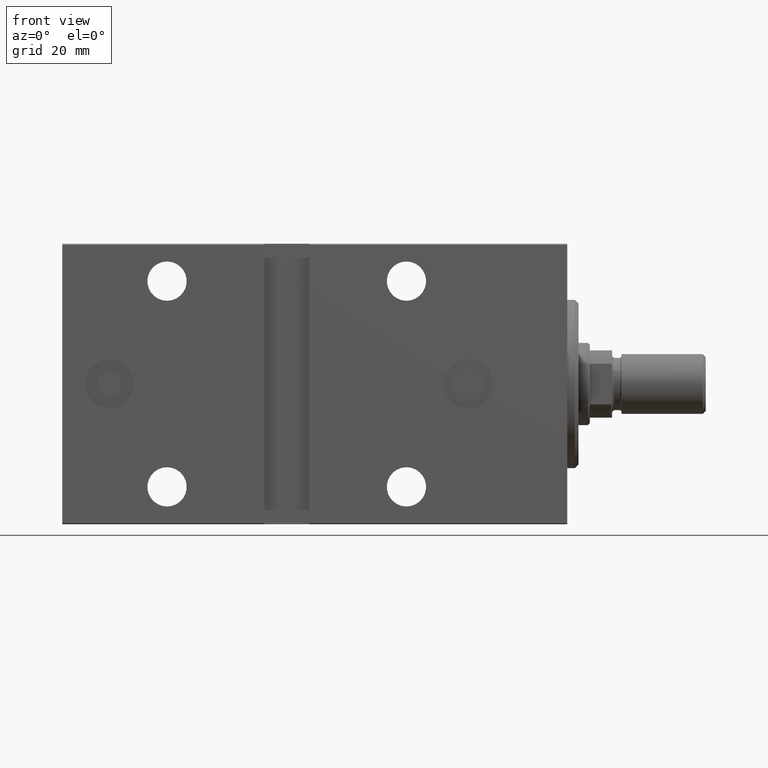
[diagram: clean part render]
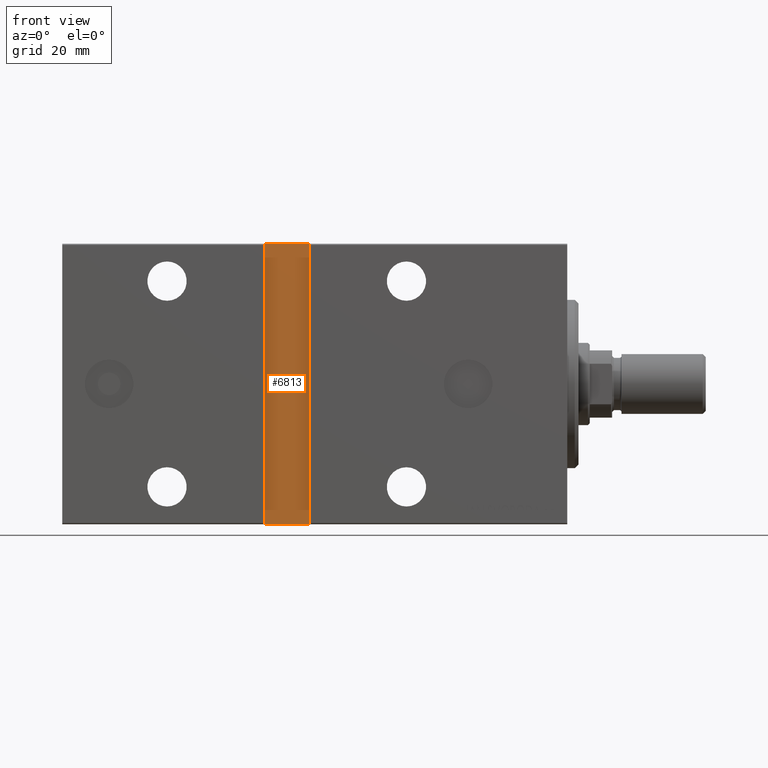
[diagram: same view with one face highlighted and labeled with its STEP entity id]
A machine part, front view. The second image highlights one B-rep face of the part: STEP entity #6813.
In plain terms, the highlighted planar face has unit normal (-0, 1, -0).
Its self-contained STEP definition (entity closure, byte-faithful):
#871 = DIRECTION ( 'NONE',  ( 1.850371707708591851E-16, 9.251858538542959255E-17, -1.000000000000000000 ) ) ;
#1374 = LINE ( 'NONE', #27423, #16028 ) ;
#2484 = ORIENTED_EDGE ( 'NONE', *, *, #22606, .T. ) ;
#3166 = VERTEX_POINT ( 'NONE', #38974 ) ;
#4096 = DIRECTION ( 'NONE',  ( 0.000000000000000000, 9.251858538542959255E-17, -1.000000000000000000 ) ) ;
#4132 = CARTESIAN_POINT ( 'NONE',  ( 81.00000000000001421, 24.50000000000000355, -37.50000000000009237 ) ) ;
#6405 = VERTEX_POINT ( 'NONE', #34220 ) ;
#6813 = ADVANCED_FACE ( 'NONE', ( #36937 ), #27093, .F. ) ;
#8140 = CARTESIAN_POINT ( 'NONE',  ( 81.00000000000000000, 24.49999999999999645, 37.50000000000000711 ) ) ;
#8487 = LINE ( 'NONE', #4132, #42890 ) ;
#10773 = ORIENTED_EDGE ( 'NONE', *, *, #26377, .T. ) ;
#12117 = AXIS2_PLACEMENT_3D ( 'NONE', #34060, #14382, #4096 ) ;
#14382 = DIRECTION ( 'NONE',  ( 0.000000000000000000, -1.000000000000000000, -9.251858538542959255E-17 ) ) ;
#16028 = VECTOR ( 'NONE', #34610, 1000.000000000000000 ) ;
#17214 = DIRECTION ( 'NONE',  ( 0.000000000000000000, -9.251858538542959255E-17, 1.000000000000000000 ) ) ;
#17350 = DIRECTION ( 'NONE',  ( 1.000000000000000000, -0.000000000000000000, -0.000000000000000000 ) ) ;
#20136 = VECTOR ( 'NONE', #17214, 1000.000000000000000 ) ;
#22606 = EDGE_CURVE ( 'NONE', #27213, #6405, #33829, .T. ) ;
#26366 = EDGE_CURVE ( 'NONE', #6405, #31229, #33959, .T. ) ;
#26377 = EDGE_CURVE ( 'NONE', #3166, #27213, #1374, .T. ) ;
#27093 = PLANE ( 'NONE',  #12117 ) ;
#27213 = VERTEX_POINT ( 'NONE', #33371 ) ;
#27423 = CARTESIAN_POINT ( 'NONE',  ( 81.00000000000001421, 24.50000000000000355, -37.50000000000009237 ) ) ;
#29001 = EDGE_LOOP ( 'NONE', ( #2484, #35470, #37150, #10773 ) ) ;
#31229 = VERTEX_POINT ( 'NONE', #34139 ) ;
#33371 = CARTESIAN_POINT ( 'NONE',  ( 69.00000000000000000, 24.50000000000000355, -37.50000000000009237 ) ) ;
#33829 = LINE ( 'NONE', #40863, #20136 ) ;
#33959 = LINE ( 'NONE', #8140, #36305 ) ;
#34060 = CARTESIAN_POINT ( 'NONE',  ( 0.000000000000000000, 24.50000000000000000, 2.165775976068010180E-15 ) ) ;
#34139 = CARTESIAN_POINT ( 'NONE',  ( 81.00000000000000000, 24.49999999999999645, 37.50000000000000711 ) ) ;
#34220 = CARTESIAN_POINT ( 'NONE',  ( 69.00000000000000000, 24.49999999999999645, 37.50000000000000711 ) ) ;
#34610 = DIRECTION ( 'NONE',  ( -1.000000000000000000, 0.000000000000000000, 0.000000000000000000 ) ) ;
#35470 = ORIENTED_EDGE ( 'NONE', *, *, #26366, .T. ) ;
#36305 = VECTOR ( 'NONE', #17350, 1000.000000000000000 ) ;
#36937 = FACE_OUTER_BOUND ( 'NONE', #29001, .T. ) ;
#37150 = ORIENTED_EDGE ( 'NONE', *, *, #40964, .T. ) ;
#38974 = CARTESIAN_POINT ( 'NONE',  ( 81.00000000000001421, 24.50000000000000355, -37.50000000000000711 ) ) ;
#40863 = CARTESIAN_POINT ( 'NONE',  ( 69.00000000000000000, 24.50000000000000355, -37.50000000000009237 ) ) ;
#40964 = EDGE_CURVE ( 'NONE', #31229, #3166, #8487, .T. ) ;
#42890 = VECTOR ( 'NONE', #871, 1000.000000000000000 ) ;